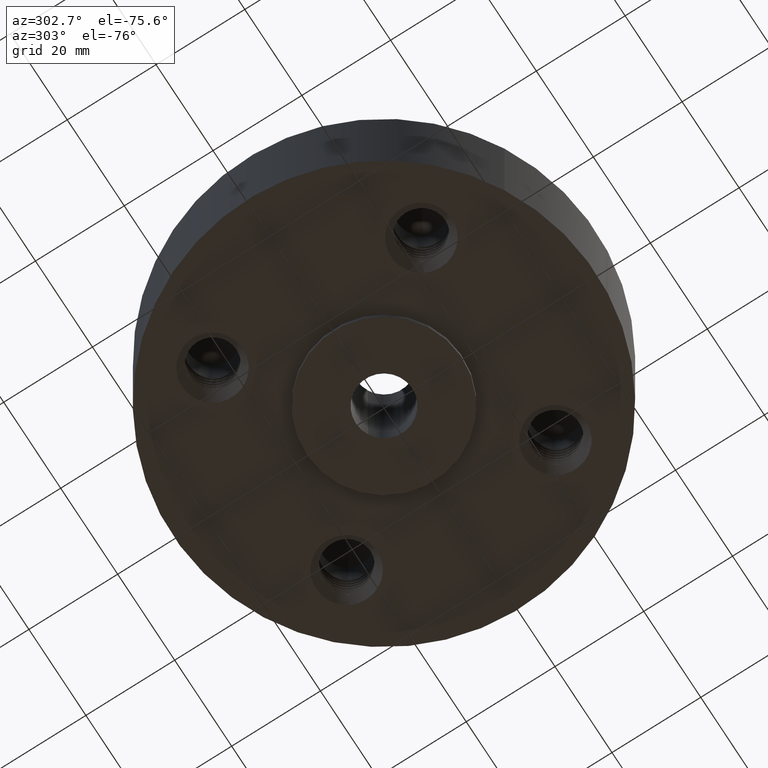
[diagram: clean part render]
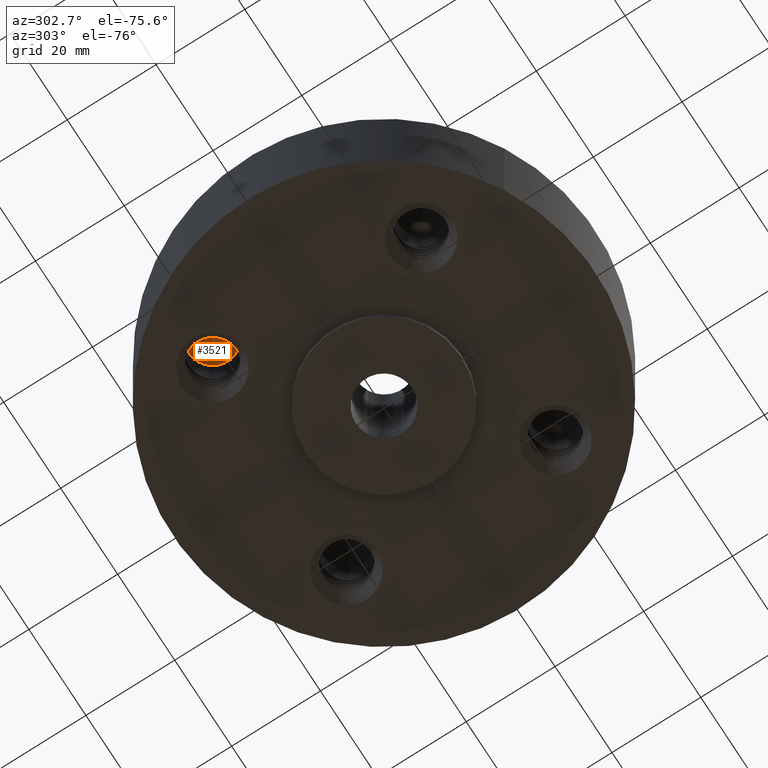
[diagram: same view with one face highlighted and labeled with its STEP entity id]
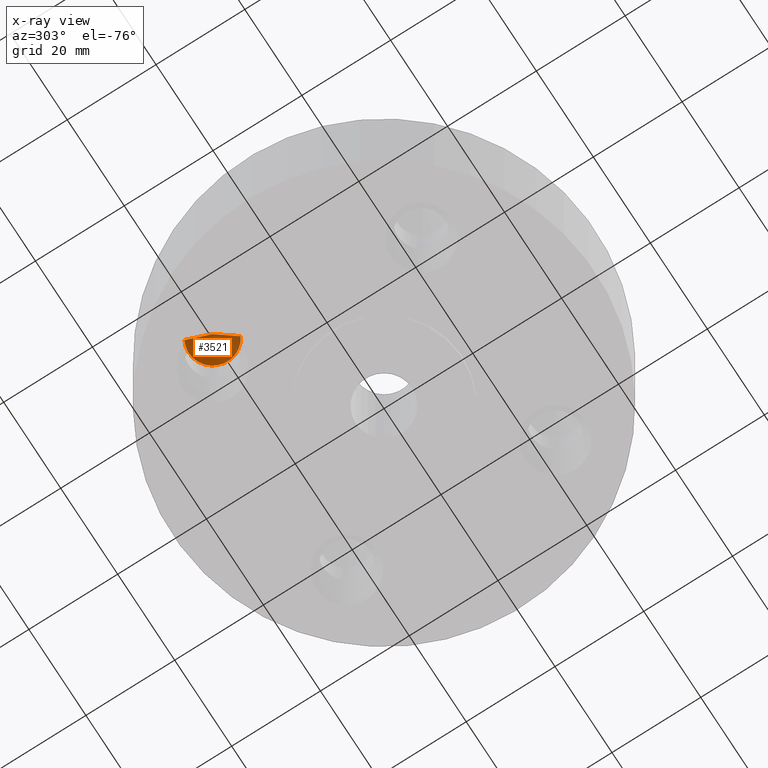
[diagram: x-ray of the same camera — body ghosted, the highlighted face saturated]
A machine part, auxiliary view. The second image highlights one B-rep face of the part: STEP entity #3521.
The next image is the same camera in x-ray: the body ghosted, the highlighted face saturated — about 26% of this face is hidden behind the body in this view.
In plain terms, the highlighted conical surface has half-angle 60 deg.
Its self-contained STEP definition (entity closure, byte-faithful):
#3493=AXIS2_PLACEMENT_3D('Cone Axis2P3D',#3490,#3491,#3492) ;
#3506=AXIS2_PLACEMENT_3D('Circle Axis2P3D',#3504,#3505,$) ;
#3490=CARTESIAN_POINT('Axis2P3D Location',(-0.926309883358,0.926309883358,1.0018209068)) ;
#3495=CARTESIAN_POINT('Line Origine',(-0.976889277681,1.01889484364,0.940910453403)) ;
#3499=CARTESIAN_POINT('Vertex',(-0.926309883358,0.926309883358,1.0018209068)) ;
#3501=CARTESIAN_POINT('Vertex',(-1.027468672,1.11147980392,0.880000000004)) ;
#3504=CARTESIAN_POINT('Axis2P3D Location',(-0.926309883358,0.926309883358,0.880000000004)) ;
#3508=CARTESIAN_POINT('Vertex',(-0.825151094712,0.741139962798,0.880000000004)) ;
#3511=CARTESIAN_POINT('Line Origine',(-0.875730489035,0.833724923078,0.940910453403)) ;
#3491=DIRECTION('Axis2P3D Direction',(-0.,-0.,-0.0393700787402)) ;
#3492=DIRECTION('Axis2P3D XDirection',(0.0188750212049,-0.0345504945626,0.)) ;
#3496=DIRECTION('Vector Direction',(-0.0163462478604,0.0299216060045,-0.0196850393701)) ;
#3505=DIRECTION('Axis2P3D Direction',(-0.,0.,-0.0393700787402)) ;
#3512=DIRECTION('Vector Direction',(0.0163462478604,-0.0299216060045,-0.0196850393701)) ;
#3497=VECTOR('Line Direction',#3496,0.0393700787402) ;
#3513=VECTOR('Line Direction',#3512,0.0393700787402) ;
#3517=ORIENTED_EDGE('',*,*,#3503,.T.) ;
#3518=ORIENTED_EDGE('',*,*,#3510,.F.) ;
#3519=ORIENTED_EDGE('',*,*,#3515,.F.) ;
#3521=ADVANCED_FACE('PartBody',(#3520),#3494,.F.) ;
#3507=CIRCLE('generated circle',#3506,0.211000000001) ;
#3494=CONICAL_SURFACE('Cone',#3493,0.,1.0471975512) ;
#3503=EDGE_CURVE('',#3500,#3502,#3498,.T.) ;
#3510=EDGE_CURVE('',#3509,#3502,#3507,.F.) ;
#3515=EDGE_CURVE('',#3500,#3509,#3514,.T.) ;
#3516=EDGE_LOOP('',(#3517,#3518,#3519)) ;
#3520=FACE_OUTER_BOUND('',#3516,.T.) ;
#3498=LINE('Line',#3495,#3497) ;
#3514=LINE('Line',#3511,#3513) ;
#3500=VERTEX_POINT('',#3499) ;
#3502=VERTEX_POINT('',#3501) ;
#3509=VERTEX_POINT('',#3508) ;